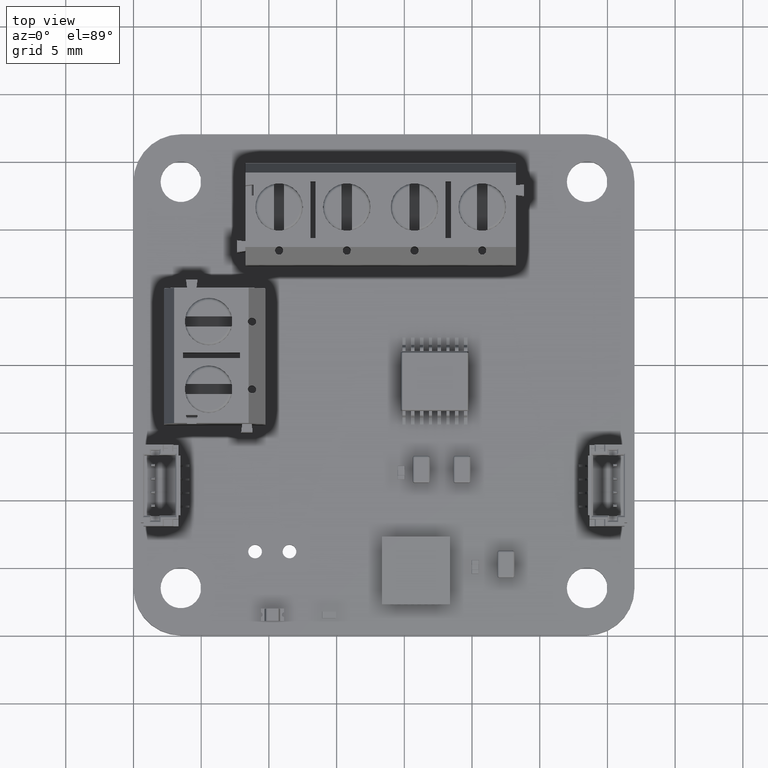
[diagram: clean part render]
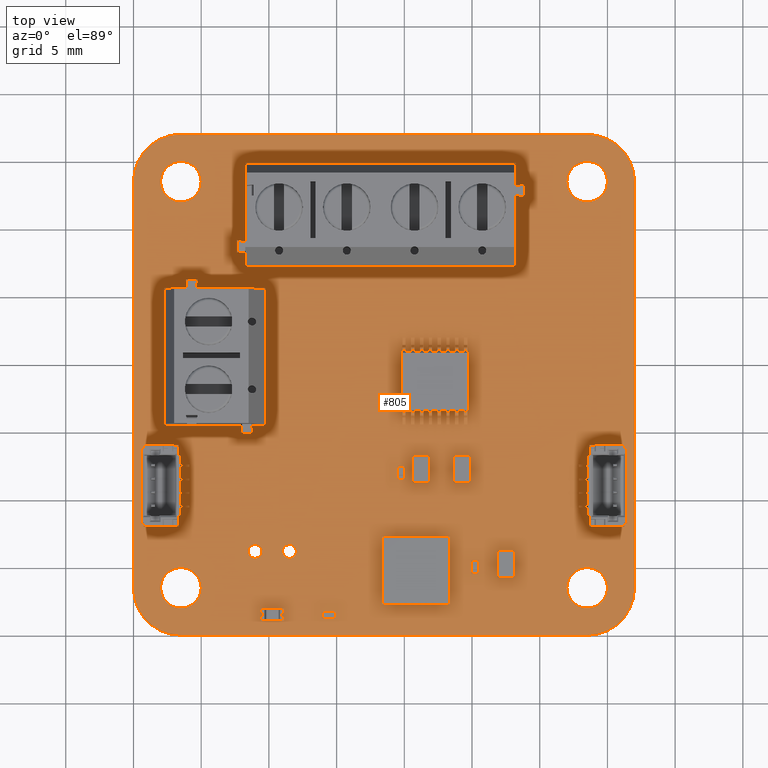
[diagram: same view with one face highlighted and labeled with its STEP entity id]
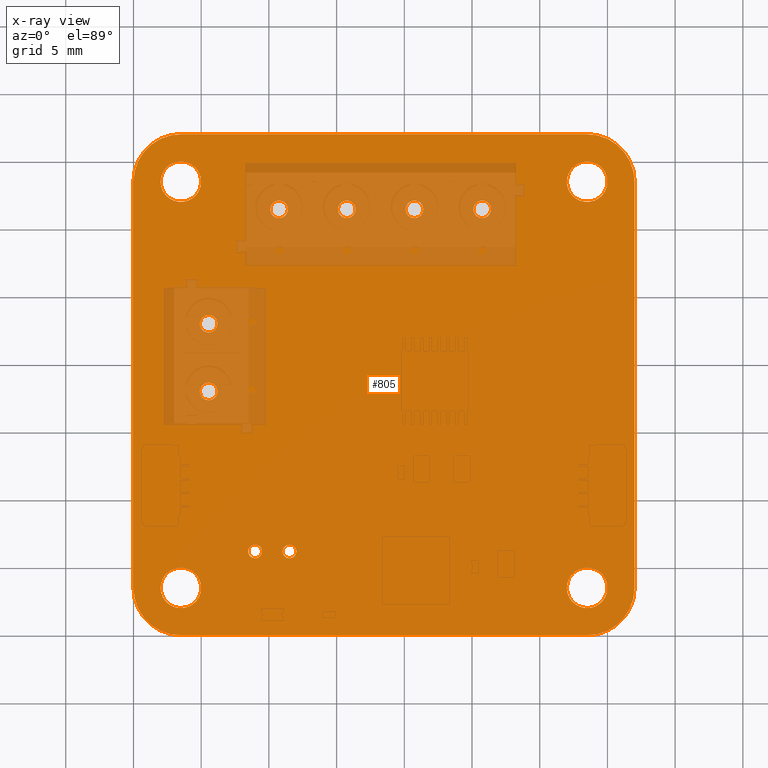
[diagram: x-ray of the same camera — body ghosted, the highlighted face saturated]
A machine part, top view. The second image highlights one B-rep face of the part: STEP entity #805.
The next image is the same camera in x-ray: the body ghosted, the highlighted face saturated — about 17% of this face is hidden behind the body in this view.
In plain terms, the highlighted planar face has unit normal (-0, -0, -1).
Its self-contained STEP definition (entity closure, byte-faithful):
#108 = VERTEX_POINT('',#109);
#109 = CARTESIAN_POINT('',(0.,3.5,1.59540194));
#115 = EDGE_CURVE('',#108,#116,#118,.T.);
#116 = VERTEX_POINT('',#117);
#117 = CARTESIAN_POINT('',(-6.661338147751E-16,33.5,1.59540194));
#118 = LINE('',#119,#120);
#119 = CARTESIAN_POINT('',(0.,3.5,1.59540194));
#120 = VECTOR('',#121,1.);
#121 = DIRECTION('',(0.,1.,0.));
#146 = EDGE_CURVE('',#116,#147,#149,.T.);
#147 = VERTEX_POINT('',#148);
#148 = CARTESIAN_POINT('',(3.5,37.,1.59540194));
#149 = CIRCLE('',#150,3.499568992062);
#150 = AXIS2_PLACEMENT_3D('',#151,#152,#153);
#151 = CARTESIAN_POINT('',(3.499568965517,33.500431034483,1.59540194));
#152 = DIRECTION('',(0.,0.,-1.));
#153 = DIRECTION('',(-0.999999992415,-1.231678768832E-04,-0.));
#179 = EDGE_CURVE('',#147,#180,#182,.T.);
#180 = VERTEX_POINT('',#181);
#181 = CARTESIAN_POINT('',(33.5,37.,1.59540194));
#182 = LINE('',#183,#184);
#183 = CARTESIAN_POINT('',(3.5,37.,1.59540194));
#184 = VECTOR('',#185,1.);
#185 = DIRECTION('',(1.,0.,0.));
#210 = EDGE_CURVE('',#180,#211,#213,.T.);
#211 = VERTEX_POINT('',#212);
#212 = CARTESIAN_POINT('',(37.,33.5,1.59540194));
#213 = CIRCLE('',#214,3.499568992062);
#214 = AXIS2_PLACEMENT_3D('',#215,#216,#217);
#215 = CARTESIAN_POINT('',(33.500431034483,33.500431034483,1.59540194));
#216 = DIRECTION('',(0.,0.,-1.));
#217 = DIRECTION('',(-1.231678768832E-04,0.999999992415,0.));
#243 = EDGE_CURVE('',#211,#244,#246,.T.);
#244 = VERTEX_POINT('',#245);
#245 = CARTESIAN_POINT('',(37.,3.5,1.59540194));
#246 = LINE('',#247,#248);
#247 = CARTESIAN_POINT('',(37.,33.5,1.59540194));
#248 = VECTOR('',#249,1.);
#249 = DIRECTION('',(0.,-1.,0.));
#274 = EDGE_CURVE('',#244,#275,#277,.T.);
#275 = VERTEX_POINT('',#276);
#276 = CARTESIAN_POINT('',(33.5,-2.22044604925E-16,1.59540194));
#277 = CIRCLE('',#278,3.499568992062);
#278 = AXIS2_PLACEMENT_3D('',#279,#280,#281);
#279 = CARTESIAN_POINT('',(33.500431034483,3.499568965517,1.59540194));
#280 = DIRECTION('',(0.,0.,-1.));
#281 = DIRECTION('',(0.999999992415,1.231678768835E-04,0.));
#307 = EDGE_CURVE('',#275,#308,#310,.T.);
#308 = VERTEX_POINT('',#309);
#309 = CARTESIAN_POINT('',(3.5,0.,1.59540194));
#310 = LINE('',#311,#312);
#311 = CARTESIAN_POINT('',(33.5,0.,1.59540194));
#312 = VECTOR('',#313,1.);
#313 = DIRECTION('',(-1.,0.,0.));
#338 = EDGE_CURVE('',#308,#108,#339,.T.);
#339 = CIRCLE('',#340,3.499568992062);
#340 = AXIS2_PLACEMENT_3D('',#341,#342,#343);
#341 = CARTESIAN_POINT('',(3.499568965517,3.499568965517,1.59540194));
#342 = DIRECTION('',(0.,0.,-1.));
#343 = DIRECTION('',(1.231678768834E-04,-0.999999992415,0.));
#364 = VERTEX_POINT('',#365);
#365 = CARTESIAN_POINT('',(5.,3.5,1.59540194));
#371 = EDGE_CURVE('',#364,#364,#372,.T.);
#372 = CIRCLE('',#373,1.5);
#373 = AXIS2_PLACEMENT_3D('',#374,#375,#376);
#374 = CARTESIAN_POINT('',(3.5,3.5,1.59540194));
#375 = DIRECTION('',(0.,0.,1.));
#376 = DIRECTION('',(1.,0.,-0.));
#397 = VERTEX_POINT('',#398);
#398 = CARTESIAN_POINT('',(9.488,6.19,1.59540194));
#404 = EDGE_CURVE('',#397,#397,#405,.T.);
#405 = CIRCLE('',#406,0.508);
#406 = AXIS2_PLACEMENT_3D('',#407,#408,#409);
#407 = CARTESIAN_POINT('',(8.98,6.19,1.59540194));
#408 = DIRECTION('',(0.,0.,1.));
#409 = DIRECTION('',(1.,0.,-0.));
#430 = VERTEX_POINT('',#431);
#431 = CARTESIAN_POINT('',(6.2,18.,1.59540194));
#437 = EDGE_CURVE('',#430,#430,#438,.T.);
#438 = CIRCLE('',#439,0.65);
#439 = AXIS2_PLACEMENT_3D('',#440,#441,#442);
#440 = CARTESIAN_POINT('',(5.55,18.,1.59540194));
#441 = DIRECTION('',(0.,0.,1.));
#442 = DIRECTION('',(1.,0.,-0.));
#463 = VERTEX_POINT('',#464);
#464 = CARTESIAN_POINT('',(5.,33.5,1.59540194));
#470 = EDGE_CURVE('',#463,#463,#471,.T.);
#471 = CIRCLE('',#472,1.5);
#472 = AXIS2_PLACEMENT_3D('',#473,#474,#475);
#473 = CARTESIAN_POINT('',(3.5,33.5,1.59540194));
#474 = DIRECTION('',(0.,0.,1.));
#475 = DIRECTION('',(1.,0.,-0.));
#496 = VERTEX_POINT('',#497);
#497 = CARTESIAN_POINT('',(6.2,23.,1.59540194));
#503 = EDGE_CURVE('',#496,#496,#504,.T.);
#504 = CIRCLE('',#505,0.65);
#505 = AXIS2_PLACEMENT_3D('',#506,#507,#508);
#506 = CARTESIAN_POINT('',(5.55,23.,1.59540194));
#507 = DIRECTION('',(0.,0.,1.));
#508 = DIRECTION('',(1.,0.,-0.));
#529 = VERTEX_POINT('',#530);
#530 = CARTESIAN_POINT('',(11.4,31.45,1.59540194));
#536 = EDGE_CURVE('',#529,#529,#537,.T.);
#537 = CIRCLE('',#538,0.65);
#538 = AXIS2_PLACEMENT_3D('',#539,#540,#541);
#539 = CARTESIAN_POINT('',(10.75,31.45,1.59540194));
#540 = DIRECTION('',(0.,0.,1.));
#541 = DIRECTION('',(1.,0.,-0.));
#562 = VERTEX_POINT('',#563);
#563 = CARTESIAN_POINT('',(12.028,6.19,1.59540194));
#569 = EDGE_CURVE('',#562,#562,#570,.T.);
#570 = CIRCLE('',#571,0.508);
#571 = AXIS2_PLACEMENT_3D('',#572,#573,#574);
#572 = CARTESIAN_POINT('',(11.52,6.19,1.59540194));
#573 = DIRECTION('',(0.,0.,1.));
#574 = DIRECTION('',(1.,0.,-0.));
#595 = VERTEX_POINT('',#596);
#596 = CARTESIAN_POINT('',(35.,3.5,1.59540194));
#602 = EDGE_CURVE('',#595,#595,#603,.T.);
#603 = CIRCLE('',#604,1.5);
#604 = AXIS2_PLACEMENT_3D('',#605,#606,#607);
#605 = CARTESIAN_POINT('',(33.5,3.5,1.59540194));
#606 = DIRECTION('',(0.,0.,1.));
#607 = DIRECTION('',(1.,0.,-0.));
#628 = VERTEX_POINT('',#629);
#629 = CARTESIAN_POINT('',(16.4,31.45,1.59540194));
#635 = EDGE_CURVE('',#628,#628,#636,.T.);
#636 = CIRCLE('',#637,0.65);
#637 = AXIS2_PLACEMENT_3D('',#638,#639,#640);
#638 = CARTESIAN_POINT('',(15.75,31.45,1.59540194));
#639 = DIRECTION('',(0.,0.,1.));
#640 = DIRECTION('',(1.,0.,-0.));
#661 = VERTEX_POINT('',#662);
#662 = CARTESIAN_POINT('',(21.4,31.45,1.59540194));
#668 = EDGE_CURVE('',#661,#661,#669,.T.);
#669 = CIRCLE('',#670,0.65);
#670 = AXIS2_PLACEMENT_3D('',#671,#672,#673);
#671 = CARTESIAN_POINT('',(20.75,31.45,1.59540194));
#672 = DIRECTION('',(0.,0.,1.));
#673 = DIRECTION('',(1.,0.,-0.));
#694 = VERTEX_POINT('',#695);
#695 = CARTESIAN_POINT('',(26.4,31.45,1.59540194));
#701 = EDGE_CURVE('',#694,#694,#702,.T.);
#702 = CIRCLE('',#703,0.65);
#703 = AXIS2_PLACEMENT_3D('',#704,#705,#706);
#704 = CARTESIAN_POINT('',(25.75,31.45,1.59540194));
#705 = DIRECTION('',(0.,0.,1.));
#706 = DIRECTION('',(1.,0.,-0.));
#727 = VERTEX_POINT('',#728);
#728 = CARTESIAN_POINT('',(35.,33.5,1.59540194));
#734 = EDGE_CURVE('',#727,#727,#735,.T.);
#735 = CIRCLE('',#736,1.5);
#736 = AXIS2_PLACEMENT_3D('',#737,#738,#739);
#737 = CARTESIAN_POINT('',(33.5,33.5,1.59540194));
#738 = DIRECTION('',(0.,0.,1.));
#739 = DIRECTION('',(1.,0.,-0.));
#805 = ADVANCED_FACE('',(#806,#816,#819,#822,#825,#828,#831,#834,#837,
    #840,#843,#846,#849),#852,.F.);
#806 = FACE_BOUND('',#807,.F.);
#807 = EDGE_LOOP('',(#808,#809,#810,#811,#812,#813,#814,#815));
#808 = ORIENTED_EDGE('',*,*,#115,.T.);
#809 = ORIENTED_EDGE('',*,*,#146,.T.);
#810 = ORIENTED_EDGE('',*,*,#179,.T.);
#811 = ORIENTED_EDGE('',*,*,#210,.T.);
#812 = ORIENTED_EDGE('',*,*,#243,.T.);
#813 = ORIENTED_EDGE('',*,*,#274,.T.);
#814 = ORIENTED_EDGE('',*,*,#307,.T.);
#815 = ORIENTED_EDGE('',*,*,#338,.T.);
#816 = FACE_BOUND('',#817,.F.);
#817 = EDGE_LOOP('',(#818));
#818 = ORIENTED_EDGE('',*,*,#371,.T.);
#819 = FACE_BOUND('',#820,.F.);
#820 = EDGE_LOOP('',(#821));
#821 = ORIENTED_EDGE('',*,*,#404,.T.);
#822 = FACE_BOUND('',#823,.F.);
#823 = EDGE_LOOP('',(#824));
#824 = ORIENTED_EDGE('',*,*,#437,.T.);
#825 = FACE_BOUND('',#826,.F.);
#826 = EDGE_LOOP('',(#827));
#827 = ORIENTED_EDGE('',*,*,#470,.T.);
#828 = FACE_BOUND('',#829,.F.);
#829 = EDGE_LOOP('',(#830));
#830 = ORIENTED_EDGE('',*,*,#503,.T.);
#831 = FACE_BOUND('',#832,.F.);
#832 = EDGE_LOOP('',(#833));
#833 = ORIENTED_EDGE('',*,*,#536,.T.);
#834 = FACE_BOUND('',#835,.F.);
#835 = EDGE_LOOP('',(#836));
#836 = ORIENTED_EDGE('',*,*,#569,.T.);
#837 = FACE_BOUND('',#838,.F.);
#838 = EDGE_LOOP('',(#839));
#839 = ORIENTED_EDGE('',*,*,#602,.T.);
#840 = FACE_BOUND('',#841,.F.);
#841 = EDGE_LOOP('',(#842));
#842 = ORIENTED_EDGE('',*,*,#635,.T.);
#843 = FACE_BOUND('',#844,.F.);
#844 = EDGE_LOOP('',(#845));
#845 = ORIENTED_EDGE('',*,*,#668,.T.);
#846 = FACE_BOUND('',#847,.F.);
#847 = EDGE_LOOP('',(#848));
#848 = ORIENTED_EDGE('',*,*,#701,.T.);
#849 = FACE_BOUND('',#850,.F.);
#850 = EDGE_LOOP('',(#851));
#851 = ORIENTED_EDGE('',*,*,#734,.T.);
#852 = PLANE('',#853);
#853 = AXIS2_PLACEMENT_3D('',#854,#855,#856);
#854 = CARTESIAN_POINT('',(18.5,18.5,1.59540194));
#855 = DIRECTION('',(-0.,-0.,-1.));
#856 = DIRECTION('',(-1.,0.,0.));